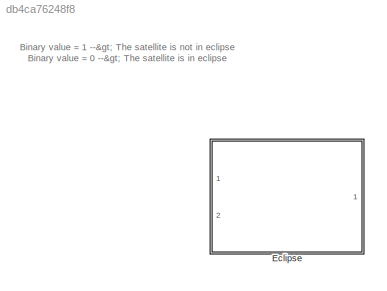
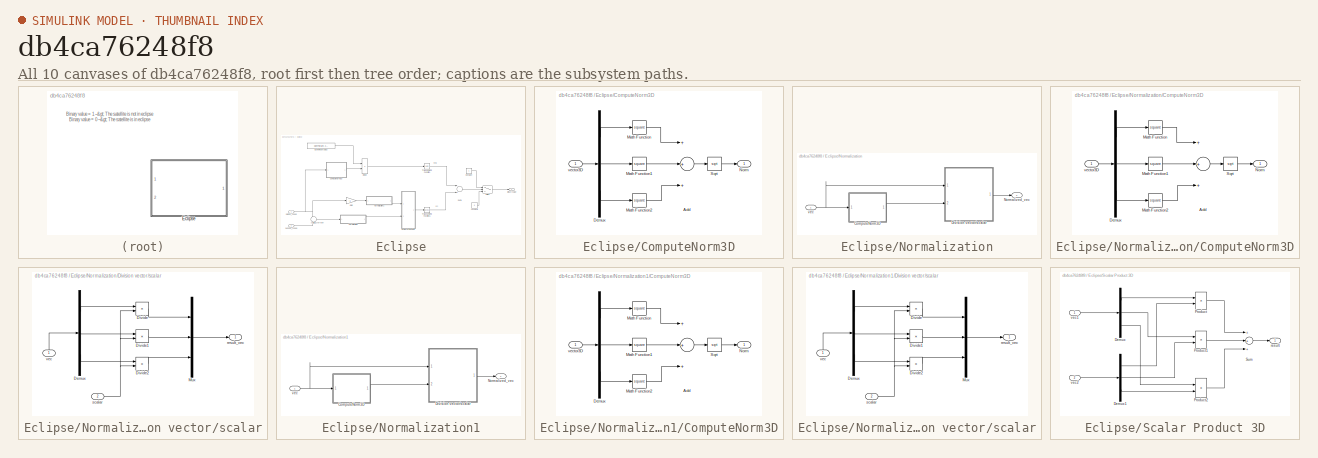
[diagram: thumbnail index - all 10 canvases of the model, root first then tree order]
MODEL slx_db4ca76248f8
KIND library
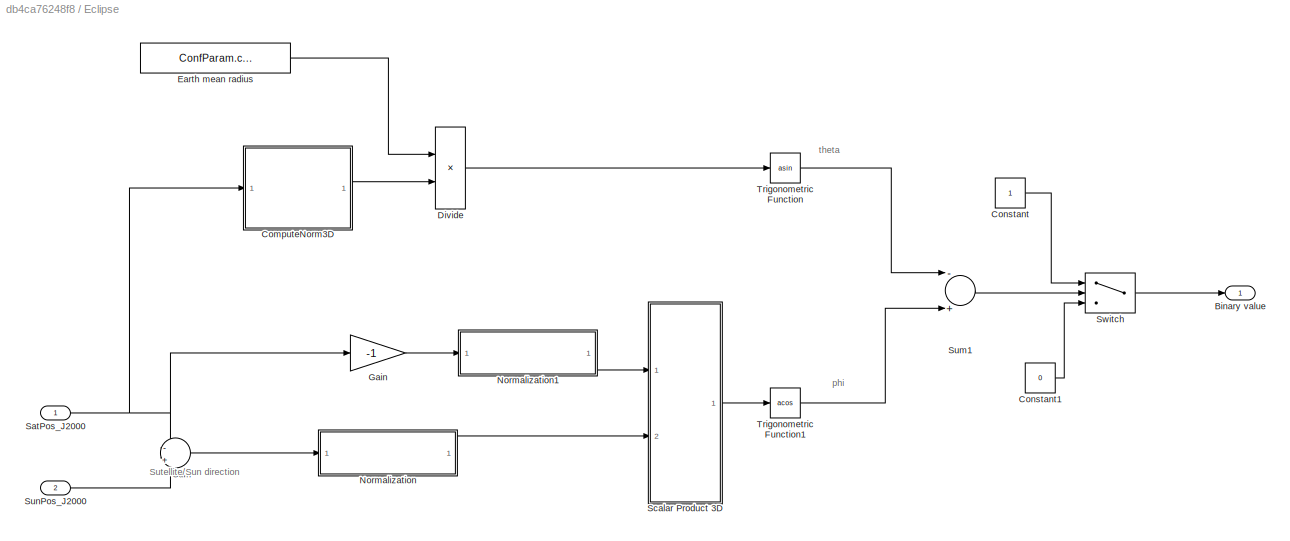
BLOCK [SubSystem] Eclipse
  Ports = [2, 1]
  RequestExecContextInheritance = off
BLOCK [Outport] Eclipse/Binary value
  IconDisplay = Port number
BLOCK [SubSystem] Eclipse/ComputeNorm3D
  Ports = [1, 1]
  RequestExecContextInheritance = off
BLOCK [Sum] Eclipse/ComputeNorm3D/Add
  InputSameDT = off
  Inputs = +++
  OutDataTypeStr = Inherit: Inherit via internal rule
  Ports = [3, 1]
  SaturateOnIntegerOverflow = off
BLOCK [Demux] Eclipse/ComputeNorm3D/Demux
  DisplayOption = bar
  Outputs = 3
  Ports = [1, 3]
BLOCK [Math] Eclipse/ComputeNorm3D/Math Function
  Operator = square
  Ports = [1, 1]
BLOCK [Math] Eclipse/ComputeNorm3D/Math Function1
  Operator = square
  Ports = [1, 1]
BLOCK [Math] Eclipse/ComputeNorm3D/Math Function2
  Operator = square
  Ports = [1, 1]
BLOCK [Outport] Eclipse/ComputeNorm3D/Norm
  IconDisplay = Port number
BLOCK [Sqrt] Eclipse/ComputeNorm3D/Sqrt
BLOCK [Inport] Eclipse/ComputeNorm3D/vector3D
  IconDisplay = Port number
BLOCK [Constant] Eclipse/Constant
BLOCK [Constant] Eclipse/Constant1
  Value = 0
BLOCK [Product] Eclipse/Divide
  InputSameDT = off
  Inputs = */
  OutDataTypeStr = Inherit: Inherit via internal rule
  Ports = [2, 1]
  RndMeth = Floor
  SaturateOnIntegerOverflow = off
BLOCK [Constant] Eclipse/Earth mean radius
  Value = ConfParam.confConst.EarthR
BLOCK [Gain] Eclipse/Gain
  Gain = -1
  OutDataTypeStr = Inherit: Inherit via internal rule
  ParamDataTypeStr = Inherit: Inherit via internal rule
  SaturateOnIntegerOverflow = off
BLOCK [SubSystem] Eclipse/Normalization
  Ports = [1, 1]
  RequestExecContextInheritance = off
BLOCK [SubSystem] Eclipse/Normalization/ComputeNorm3D
  Ports = [1, 1]
  RequestExecContextInheritance = off
BLOCK [Sum] Eclipse/Normalization/ComputeNorm3D/Add
  InputSameDT = off
  Inputs = +++
  OutDataTypeStr = Inherit: Inherit via internal rule
  Ports = [3, 1]
  SaturateOnIntegerOverflow = off
BLOCK [Demux] Eclipse/Normalization/ComputeNorm3D/Demux
  DisplayOption = bar
  Outputs = 3
  Ports = [1, 3]
BLOCK [Math] Eclipse/Normalization/ComputeNorm3D/Math Function
  Operator = square
  Ports = [1, 1]
BLOCK [Math] Eclipse/Normalization/ComputeNorm3D/Math Function1
  Operator = square
  Ports = [1, 1]
BLOCK [Math] Eclipse/Normalization/ComputeNorm3D/Math Function2
  Operator = square
  Ports = [1, 1]
BLOCK [Outport] Eclipse/Normalization/ComputeNorm3D/Norm
  IconDisplay = Port number
BLOCK [Sqrt] Eclipse/Normalization/ComputeNorm3D/Sqrt
BLOCK [Inport] Eclipse/Normalization/ComputeNorm3D/vector3D
  IconDisplay = Port number
BLOCK [SubSystem] Eclipse/Normalization/Division vector//scalar
  Ports = [2, 1]
  RequestExecContextInheritance = off
BLOCK [Demux] Eclipse/Normalization/Division vector//scalar/Demux
  DisplayOption = bar
  Outputs = 3
  Ports = [1, 3]
BLOCK [Product] Eclipse/Normalization/Division vector//scalar/Divide
  InputSameDT = off
  Inputs = */
  OutDataTypeStr = Inherit: Inherit via internal rule
  Ports = [2, 1]
  RndMeth = Floor
  SaturateOnIntegerOverflow = off
BLOCK [Product] Eclipse/Normalization/Division vector//scalar/Divide1
  InputSameDT = off
  Inputs = */
  OutDataTypeStr = Inherit: Inherit via internal rule
  Ports = [2, 1]
  RndMeth = Floor
  SaturateOnIntegerOverflow = off
BLOCK [Product] Eclipse/Normalization/Division vector//scalar/Divide2
  InputSameDT = off
  Inputs = */
  OutDataTypeStr = Inherit: Inherit via internal rule
  Ports = [2, 1]
  RndMeth = Floor
  SaturateOnIntegerOverflow = off
BLOCK [Mux] Eclipse/Normalization/Division vector//scalar/Mux
  DisplayOption = bar
  Inputs = 3
  Ports = [3, 1]
BLOCK [Outport] Eclipse/Normalization/Division vector//scalar/result_vec
  IconDisplay = Port number
BLOCK [Inport] Eclipse/Normalization/Division vector//scalar/scalar
  IconDisplay = Port number
  Port = 2
BLOCK [Inport] Eclipse/Normalization/Division vector//scalar/vec
  IconDisplay = Port number
BLOCK [Outport] Eclipse/Normalization/Normalized_vec
  IconDisplay = Port number
BLOCK [Inport] Eclipse/Normalization/vec
  IconDisplay = Port number
BLOCK [SubSystem] Eclipse/Normalization1
  Ports = [1, 1]
  RequestExecContextInheritance = off
BLOCK [SubSystem] Eclipse/Normalization1/ComputeNorm3D
  Ports = [1, 1]
  RequestExecContextInheritance = off
BLOCK [Sum] Eclipse/Normalization1/ComputeNorm3D/Add
  InputSameDT = off
  Inputs = +++
  OutDataTypeStr = Inherit: Inherit via internal rule
  Ports = [3, 1]
  SaturateOnIntegerOverflow = off
BLOCK [Demux] Eclipse/Normalization1/ComputeNorm3D/Demux
  DisplayOption = bar
  Outputs = 3
  Ports = [1, 3]
BLOCK [Math] Eclipse/Normalization1/ComputeNorm3D/Math Function
  Operator = square
  Ports = [1, 1]
BLOCK [Math] Eclipse/Normalization1/ComputeNorm3D/Math Function1
  Operator = square
  Ports = [1, 1]
BLOCK [Math] Eclipse/Normalization1/ComputeNorm3D/Math Function2
  Operator = square
  Ports = [1, 1]
BLOCK [Outport] Eclipse/Normalization1/ComputeNorm3D/Norm
  IconDisplay = Port number
BLOCK [Sqrt] Eclipse/Normalization1/ComputeNorm3D/Sqrt
BLOCK [Inport] Eclipse/Normalization1/ComputeNorm3D/vector3D
  IconDisplay = Port number
BLOCK [SubSystem] Eclipse/Normalization1/Division vector//scalar
  Ports = [2, 1]
  RequestExecContextInheritance = off
BLOCK [Demux] Eclipse/Normalization1/Division vector//scalar/Demux
  DisplayOption = bar
  Outputs = 3
  Ports = [1, 3]
BLOCK [Product] Eclipse/Normalization1/Division vector//scalar/Divide
  InputSameDT = off
  Inputs = */
  OutDataTypeStr = Inherit: Inherit via internal rule
  Ports = [2, 1]
  RndMeth = Floor
  SaturateOnIntegerOverflow = off
BLOCK [Product] Eclipse/Normalization1/Division vector//scalar/Divide1
  InputSameDT = off
  Inputs = */
  OutDataTypeStr = Inherit: Inherit via internal rule
  Ports = [2, 1]
  RndMeth = Floor
  SaturateOnIntegerOverflow = off
BLOCK [Product] Eclipse/Normalization1/Division vector//scalar/Divide2
  InputSameDT = off
  Inputs = */
  OutDataTypeStr = Inherit: Inherit via internal rule
  Ports = [2, 1]
  RndMeth = Floor
  SaturateOnIntegerOverflow = off
BLOCK [Mux] Eclipse/Normalization1/Division vector//scalar/Mux
  DisplayOption = bar
  Inputs = 3
  Ports = [3, 1]
BLOCK [Outport] Eclipse/Normalization1/Division vector//scalar/result_vec
  IconDisplay = Port number
BLOCK [Inport] Eclipse/Normalization1/Division vector//scalar/scalar
  IconDisplay = Port number
  Port = 2
BLOCK [Inport] Eclipse/Normalization1/Division vector//scalar/vec
  IconDisplay = Port number
BLOCK [Outport] Eclipse/Normalization1/Normalized_vec
  IconDisplay = Port number
BLOCK [Inport] Eclipse/Normalization1/vec
  IconDisplay = Port number
BLOCK [Inport] Eclipse/SatPos_J2000
  IconDisplay = Port number
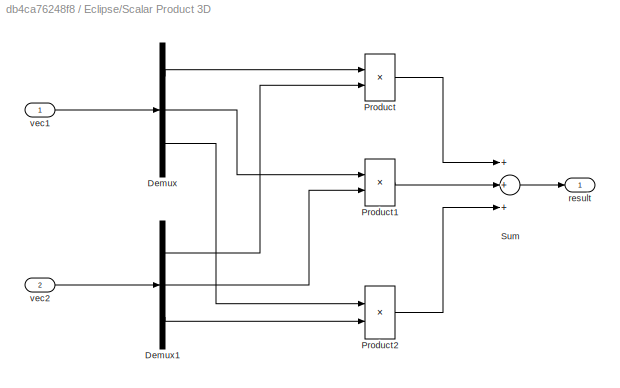
BLOCK [SubSystem] Eclipse/Scalar Product 3D
  Ports = [2, 1]
  RequestExecContextInheritance = off
BLOCK [Demux] Eclipse/Scalar Product 3D/Demux
  DisplayOption = bar
  Outputs = 3
  Ports = [1, 3]
BLOCK [Demux] Eclipse/Scalar Product 3D/Demux1
  DisplayOption = bar
  Outputs = 3
  Ports = [1, 3]
BLOCK [Product] Eclipse/Scalar Product 3D/Product
  InputSameDT = off
  OutDataTypeStr = Inherit: Inherit via internal rule
  Ports = [2, 1]
  RndMeth = Floor
  SaturateOnIntegerOverflow = off
BLOCK [Product] Eclipse/Scalar Product 3D/Product1
  InputSameDT = off
  OutDataTypeStr = Inherit: Inherit via internal rule
  Ports = [2, 1]
  RndMeth = Floor
  SaturateOnIntegerOverflow = off
BLOCK [Product] Eclipse/Scalar Product 3D/Product2
  InputSameDT = off
  OutDataTypeStr = Inherit: Inherit via internal rule
  Ports = [2, 1]
  RndMeth = Floor
  SaturateOnIntegerOverflow = off
BLOCK [Sum] Eclipse/Scalar Product 3D/Sum
  InputSameDT = off
  Inputs = +++
  OutDataTypeStr = Inherit: Inherit via internal rule
  Ports = [3, 1]
  SaturateOnIntegerOverflow = off
BLOCK [Outport] Eclipse/Scalar Product 3D/result
  IconDisplay = Port number
BLOCK [Inport] Eclipse/Scalar Product 3D/vec1
  IconDisplay = Port number
BLOCK [Inport] Eclipse/Scalar Product 3D/vec2
  IconDisplay = Port number
  Port = 2
BLOCK [Sum] Eclipse/Sum
  IconShape = round
  InputSameDT = off
  Inputs = -|+
  OutDataTypeStr = Inherit: Inherit via internal rule
  Ports = [2, 1]
  SaturateOnIntegerOverflow = off
BLOCK [Sum] Eclipse/Sum1
  InputSameDT = off
  Inputs = -+
  OutDataTypeStr = Inherit: Inherit via internal rule
  Ports = [2, 1]
  SaturateOnIntegerOverflow = off
BLOCK [Inport] Eclipse/SunPos_J2000
  IconDisplay = Port number
  Port = 2
BLOCK [Switch] Eclipse/Switch
  Criteria = u2 > Threshold
  InputSameDT = off
  SaturateOnIntegerOverflow = off
BLOCK [Trigonometry] Eclipse/Trigonometric Function
  Operator = asin
  Ports = [1, 1]
BLOCK [Trigonometry] Eclipse/Trigonometric Function1
  Operator = acos
  Ports = [1, 1]
ANNOTATION (root): Binary value = 1 --> The satellite is not in eclipse Binary value = 0 --> The satellite is in eclipse
ANNOTATION Eclipse: Sutellite/Sun direction
ANNOTATION Eclipse: phi
ANNOTATION Eclipse: theta
LINE Eclipse/ComputeNorm3D/Add:1 -> Eclipse/ComputeNorm3D/Sqrt:1
LINE Eclipse/ComputeNorm3D/Demux:1 -> Eclipse/ComputeNorm3D/Math Function:1
LINE Eclipse/ComputeNorm3D/Demux:2 -> Eclipse/ComputeNorm3D/Math Function1:1
LINE Eclipse/ComputeNorm3D/Demux:3 -> Eclipse/ComputeNorm3D/Math Function2:1
LINE Eclipse/ComputeNorm3D/Math Function1:1 -> Eclipse/ComputeNorm3D/Add:2
LINE Eclipse/ComputeNorm3D/Math Function2:1 -> Eclipse/ComputeNorm3D/Add:3
LINE Eclipse/ComputeNorm3D/Math Function:1 -> Eclipse/ComputeNorm3D/Add:1
LINE Eclipse/ComputeNorm3D/Sqrt:1 -> Eclipse/ComputeNorm3D/Norm:1
LINE Eclipse/ComputeNorm3D/vector3D:1 -> Eclipse/ComputeNorm3D/Demux:1
LINE Eclipse/ComputeNorm3D:1 -> Eclipse/Divide:2
LINE Eclipse/Constant1:1 -> Eclipse/Switch:3
LINE Eclipse/Constant:1 -> Eclipse/Switch:1
LINE Eclipse/Divide:1 -> Eclipse/Trigonometric Function:1
LINE Eclipse/Earth mean radius:1 -> Eclipse/Divide:1
LINE Eclipse/Gain:1 -> Eclipse/Normalization1:1
LINE Eclipse/Normalization/ComputeNorm3D/Add:1 -> Eclipse/Normalization/ComputeNorm3D/Sqrt:1
LINE Eclipse/Normalization/ComputeNorm3D/Demux:1 -> Eclipse/Normalization/ComputeNorm3D/Math Function:1
LINE Eclipse/Normalization/ComputeNorm3D/Demux:2 -> Eclipse/Normalization/ComputeNorm3D/Math Function1:1
LINE Eclipse/Normalization/ComputeNorm3D/Demux:3 -> Eclipse/Normalization/ComputeNorm3D/Math Function2:1
LINE Eclipse/Normalization/ComputeNorm3D/Math Function1:1 -> Eclipse/Normalization/ComputeNorm3D/Add:2
LINE Eclipse/Normalization/ComputeNorm3D/Math Function2:1 -> Eclipse/Normalization/ComputeNorm3D/Add:3
LINE Eclipse/Normalization/ComputeNorm3D/Math Function:1 -> Eclipse/Normalization/ComputeNorm3D/Add:1
LINE Eclipse/Normalization/ComputeNorm3D/Sqrt:1 -> Eclipse/Normalization/ComputeNorm3D/Norm:1
LINE Eclipse/Normalization/ComputeNorm3D/vector3D:1 -> Eclipse/Normalization/ComputeNorm3D/Demux:1
LINE Eclipse/Normalization/ComputeNorm3D:1 -> Eclipse/Normalization/Division vector//scalar:2
LINE Eclipse/Normalization/Division vector//scalar/Demux:1 -> Eclipse/Normalization/Division vector//scalar/Divide:1
LINE Eclipse/Normalization/Division vector//scalar/Demux:2 -> Eclipse/Normalization/Division vector//scalar/Divide1:1
LINE Eclipse/Normalization/Division vector//scalar/Demux:3 -> Eclipse/Normalization/Division vector//scalar/Divide2:1
LINE Eclipse/Normalization/Division vector//scalar/Divide1:1 -> Eclipse/Normalization/Division vector//scalar/Mux:2
LINE Eclipse/Normalization/Division vector//scalar/Divide2:1 -> Eclipse/Normalization/Division vector//scalar/Mux:3
LINE Eclipse/Normalization/Division vector//scalar/Divide:1 -> Eclipse/Normalization/Division vector//scalar/Mux:1
LINE Eclipse/Normalization/Division vector//scalar/Mux:1 -> Eclipse/Normalization/Division vector//scalar/result_vec:1
NET Eclipse/Normalization/Division vector//scalar/scalar:1 -> Eclipse/Normalization/Division vector//scalar/Divide1:2, Eclipse/Normalization/Division vector//scalar/Divide2:2, Eclipse/Normalization/Division vector//scalar/Divide:2
LINE Eclipse/Normalization/Division vector//scalar/vec:1 -> Eclipse/Normalization/Division vector//scalar/Demux:1
LINE Eclipse/Normalization/Division vector//scalar:1 -> Eclipse/Normalization/Normalized_vec:1
NET Eclipse/Normalization/vec:1 -> Eclipse/Normalization/ComputeNorm3D:1, Eclipse/Normalization/Division vector//scalar:1
LINE Eclipse/Normalization1/ComputeNorm3D/Add:1 -> Eclipse/Normalization1/ComputeNorm3D/Sqrt:1
LINE Eclipse/Normalization1/ComputeNorm3D/Demux:1 -> Eclipse/Normalization1/ComputeNorm3D/Math Function:1
LINE Eclipse/Normalization1/ComputeNorm3D/Demux:2 -> Eclipse/Normalization1/ComputeNorm3D/Math Function1:1
LINE Eclipse/Normalization1/ComputeNorm3D/Demux:3 -> Eclipse/Normalization1/ComputeNorm3D/Math Function2:1
LINE Eclipse/Normalization1/ComputeNorm3D/Math Function1:1 -> Eclipse/Normalization1/ComputeNorm3D/Add:2
LINE Eclipse/Normalization1/ComputeNorm3D/Math Function2:1 -> Eclipse/Normalization1/ComputeNorm3D/Add:3
LINE Eclipse/Normalization1/ComputeNorm3D/Math Function:1 -> Eclipse/Normalization1/ComputeNorm3D/Add:1
LINE Eclipse/Normalization1/ComputeNorm3D/Sqrt:1 -> Eclipse/Normalization1/ComputeNorm3D/Norm:1
LINE Eclipse/Normalization1/ComputeNorm3D/vector3D:1 -> Eclipse/Normalization1/ComputeNorm3D/Demux:1
LINE Eclipse/Normalization1/ComputeNorm3D:1 -> Eclipse/Normalization1/Division vector//scalar:2
LINE Eclipse/Normalization1/Division vector//scalar/Demux:1 -> Eclipse/Normalization1/Division vector//scalar/Divide:1
LINE Eclipse/Normalization1/Division vector//scalar/Demux:2 -> Eclipse/Normalization1/Division vector//scalar/Divide1:1
LINE Eclipse/Normalization1/Division vector//scalar/Demux:3 -> Eclipse/Normalization1/Division vector//scalar/Divide2:1
LINE Eclipse/Normalization1/Division vector//scalar/Divide1:1 -> Eclipse/Normalization1/Division vector//scalar/Mux:2
LINE Eclipse/Normalization1/Division vector//scalar/Divide2:1 -> Eclipse/Normalization1/Division vector//scalar/Mux:3
LINE Eclipse/Normalization1/Division vector//scalar/Divide:1 -> Eclipse/Normalization1/Division vector//scalar/Mux:1
LINE Eclipse/Normalization1/Division vector//scalar/Mux:1 -> Eclipse/Normalization1/Division vector//scalar/result_vec:1
NET Eclipse/Normalization1/Division vector//scalar/scalar:1 -> Eclipse/Normalization1/Division vector//scalar/Divide1:2, Eclipse/Normalization1/Division vector//scalar/Divide2:2, Eclipse/Normalization1/Division vector//scalar/Divide:2
LINE Eclipse/Normalization1/Division vector//scalar/vec:1 -> Eclipse/Normalization1/Division vector//scalar/Demux:1
LINE Eclipse/Normalization1/Division vector//scalar:1 -> Eclipse/Normalization1/Normalized_vec:1
NET Eclipse/Normalization1/vec:1 -> Eclipse/Normalization1/ComputeNorm3D:1, Eclipse/Normalization1/Division vector//scalar:1
LINE Eclipse/Normalization1:1 -> Eclipse/Scalar Product 3D:1
LINE Eclipse/Normalization:1 -> Eclipse/Scalar Product 3D:2
NET Eclipse/SatPos_J2000:1 -> Eclipse/ComputeNorm3D:1, Eclipse/Gain:1, Eclipse/Sum:1
LINE Eclipse/Scalar Product 3D/Demux1:1 -> Eclipse/Scalar Product 3D/Product:2
LINE Eclipse/Scalar Product 3D/Demux1:2 -> Eclipse/Scalar Product 3D/Product1:2
LINE Eclipse/Scalar Product 3D/Demux1:3 -> Eclipse/Scalar Product 3D/Product2:2
LINE Eclipse/Scalar Product 3D/Demux:1 -> Eclipse/Scalar Product 3D/Product:1
LINE Eclipse/Scalar Product 3D/Demux:2 -> Eclipse/Scalar Product 3D/Product1:1
LINE Eclipse/Scalar Product 3D/Demux:3 -> Eclipse/Scalar Product 3D/Product2:1
LINE Eclipse/Scalar Product 3D/Product1:1 -> Eclipse/Scalar Product 3D/Sum:2
LINE Eclipse/Scalar Product 3D/Product2:1 -> Eclipse/Scalar Product 3D/Sum:3
LINE Eclipse/Scalar Product 3D/Product:1 -> Eclipse/Scalar Product 3D/Sum:1
LINE Eclipse/Scalar Product 3D/Sum:1 -> Eclipse/Scalar Product 3D/result:1
LINE Eclipse/Scalar Product 3D/vec1:1 -> Eclipse/Scalar Product 3D/Demux:1
LINE Eclipse/Scalar Product 3D/vec2:1 -> Eclipse/Scalar Product 3D/Demux1:1
LINE Eclipse/Scalar Product 3D:1 -> Eclipse/Trigonometric Function1:1
LINE Eclipse/Sum1:1 -> Eclipse/Switch:2
LINE Eclipse/Sum:1 -> Eclipse/Normalization:1
LINE Eclipse/SunPos_J2000:1 -> Eclipse/Sum:2
LINE Eclipse/Switch:1 -> Eclipse/Binary value:1
LINE Eclipse/Trigonometric Function1:1 -> Eclipse/Sum1:2
LINE Eclipse/Trigonometric Function:1 -> Eclipse/Sum1:1
note: NET lines group one-source signal fan-out (src -> all destinations, sorted); 1:1 wires keep LINE
